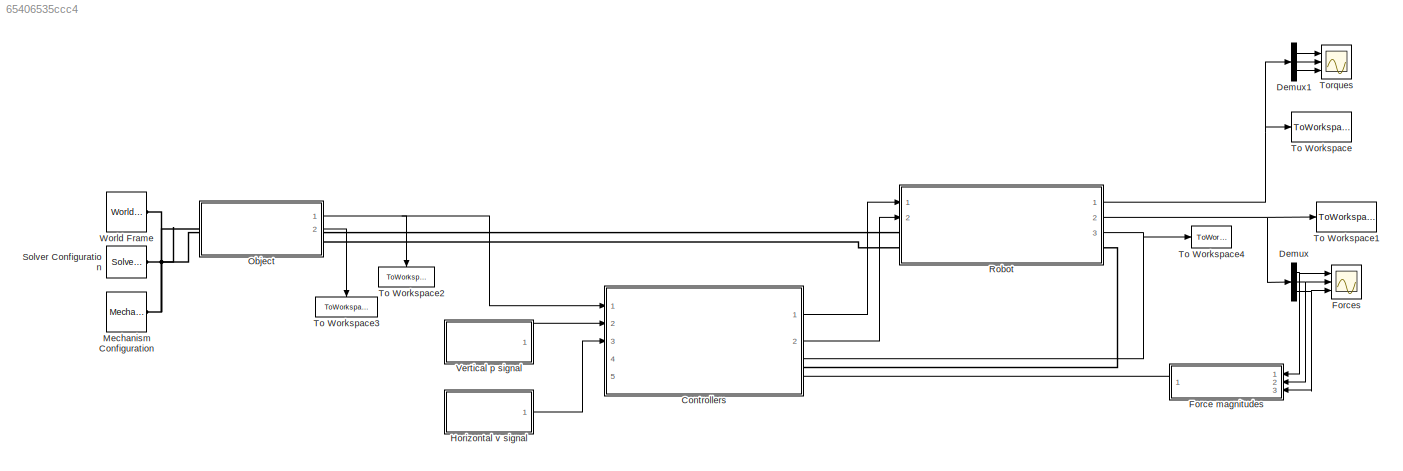
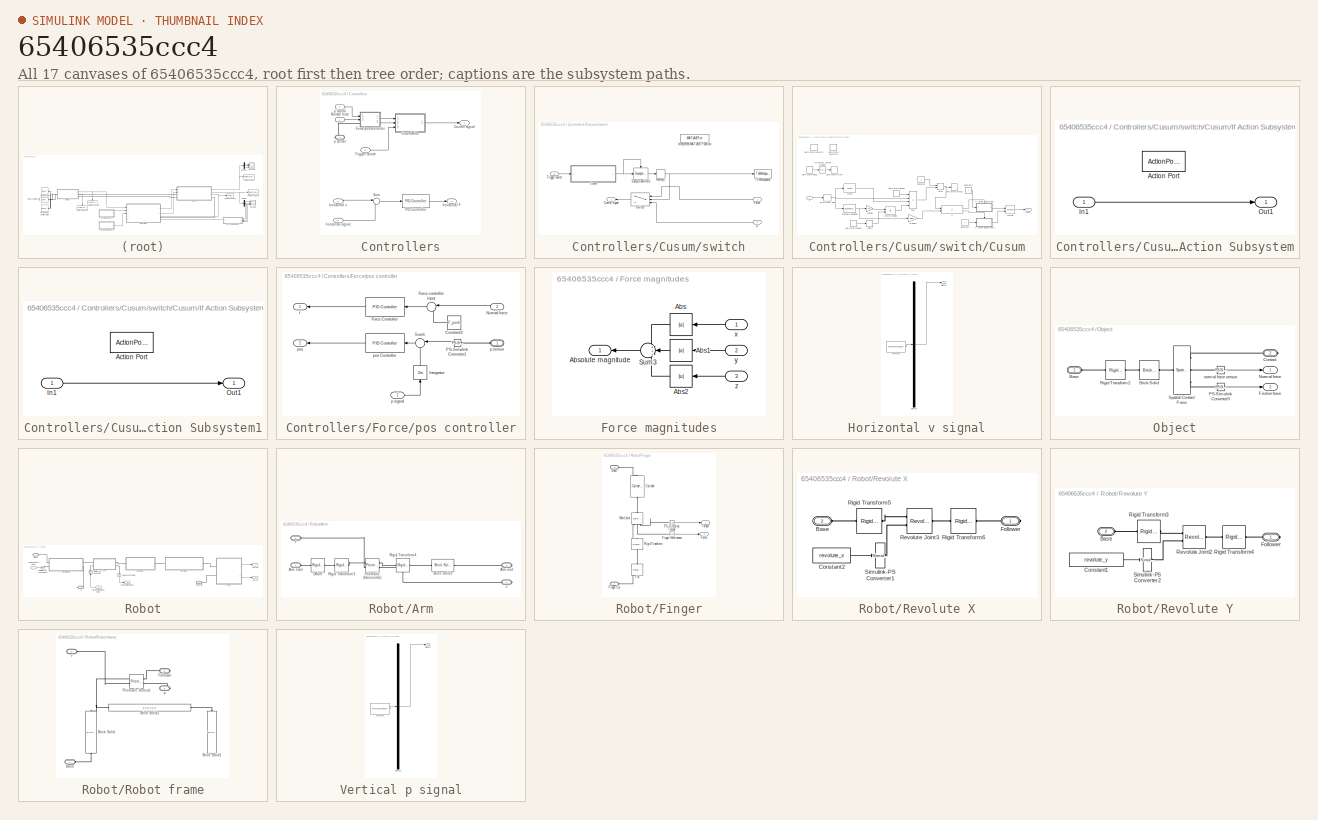
[diagram: thumbnail index - all 17 canvases of the model, root first then tree order]
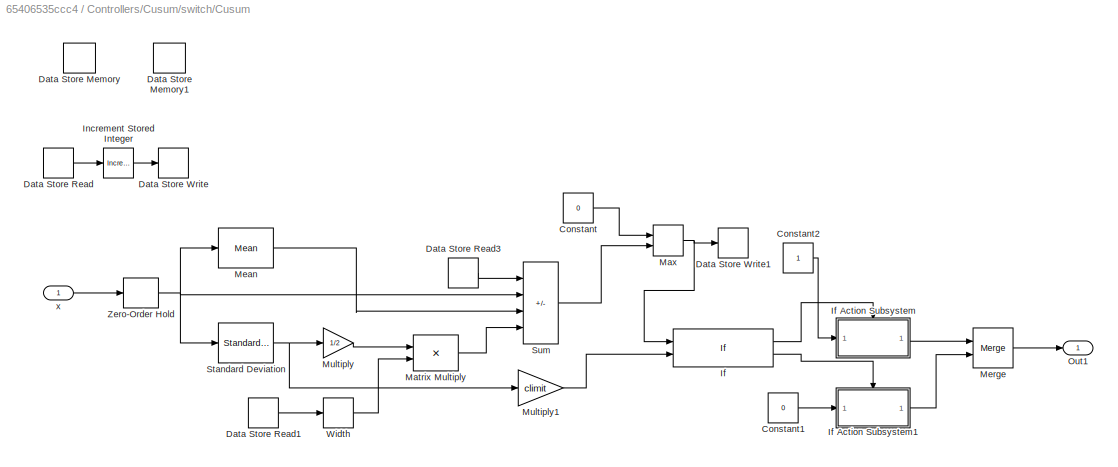
MODEL slx_65406535ccc4
KIND model
CONFIG AbsTol = 1e-3
CONFIG EnableMultiTasking = on
CONFIG FixedStep = 0.0005
CONFIG MaxStep = auto
CONFIG MinStep = auto
CONFIG RelTol = 1e-3
CONFIG SampleTimeConstraint = Unconstrained
CONFIG SolverName = VariableStepAuto
CONFIG StartTime = 0.0
CONFIG StopTime = 10
BLOCK [SubSystem] Controllers
  PortSchema = {"entries":[{"content":{"sides":[{"content":{"connectorIds":["In1","In2","In3"]},"type":"ConnectorPlacement.EquallySpacedRectSide","uuid":"fc0694cd-88fd-4e82-a16d-5926e29e811f"},{"content":{"connectorIds":["Out1","Out2","RConn1","In4","In5"],"side":"RIGHT"},"type":"ConnectorPlacement.EquallySpacedRectSide","uuid":"a4ce8955-1fca-49bf-bd79-0f76a5511258"},{"content":{"connectorIds":[],"side":"TOP"},"...<+424ch>
  Ports = [5, 2, 0, 0, 0, 0, 1]
  RequestExecContextInheritance = off
BLOCK [Outport] Controllers/Control signal
BLOCK [SubSystem] Controllers/Cusum//switch
  Ports = [3, 1]
  RequestExecContextInheritance = off
BLOCK [Outport] Controllers/Cusum//switch/Control signal
  NameLocation = top
BLOCK [SubSystem] Controllers/Cusum//switch/Cusum
  Ports = [1, 1]
  RequestExecContextInheritance = off
BLOCK [Constant] Controllers/Cusum//switch/Cusum/Constant
  Value = 0
BLOCK [Constant] Controllers/Cusum//switch/Cusum/Constant1
  Value = 0
BLOCK [Constant] Controllers/Cusum//switch/Cusum/Constant2
BLOCK [DataStoreMemory] Controllers/Cusum//switch/Cusum/Data Store Memory
  DataStoreName = i
  ReadBeforeWriteMsg = warning
  ShowAdditionalParam = off
  WriteAfterReadMsg = warning
  WriteAfterWriteMsg = warning
BLOCK [DataStoreMemory] Controllers/Cusum//switch/Cusum/Data Store Memory1
  DataStoreName = U
  ReadBeforeWriteMsg = warning
  ShowAdditionalParam = off
  WriteAfterReadMsg = warning
  WriteAfterWriteMsg = warning
BLOCK [DataStoreRead] Controllers/Cusum//switch/Cusum/Data Store Read
  DataStoreName = i
  Ports = [0, 1]
BLOCK [DataStoreRead] Controllers/Cusum//switch/Cusum/Data Store Read1
  DataStoreName = i
  Ports = [0, 1]
BLOCK [DataStoreRead] Controllers/Cusum//switch/Cusum/Data Store Read3
  DataStoreName = U
  Ports = [0, 1]
BLOCK [DataStoreWrite] Controllers/Cusum//switch/Cusum/Data Store Write
  DataStoreName = i
  Ports = [1]
BLOCK [DataStoreWrite] Controllers/Cusum//switch/Cusum/Data Store Write1
  DataStoreName = U
  Ports = [1]
BLOCK [If] Controllers/Cusum//switch/Cusum/If
  IfExpression = u1 > u2
  NumInputs = 2
  Ports = [2, 2]
BLOCK [SubSystem] Controllers/Cusum//switch/Cusum/If Action Subsystem
  Ports = [1, 1, 0, 0, 0, 0, 0, 1]
  RequestExecContextInheritance = off
  TreatAsAtomicUnit = on
BLOCK [ActionPort] Controllers/Cusum//switch/Cusum/If Action Subsystem/Action Port
  ActionPortLabel = if(u1 > u2)
BLOCK [Inport] Controllers/Cusum//switch/Cusum/If Action Subsystem/In1
BLOCK [Outport] Controllers/Cusum//switch/Cusum/If Action Subsystem/Out1
BLOCK [SubSystem] Controllers/Cusum//switch/Cusum/If Action Subsystem1
  Ports = [1, 1, 0, 0, 0, 0, 0, 1]
  RequestExecContextInheritance = off
  TreatAsAtomicUnit = on
BLOCK [ActionPort] Controllers/Cusum//switch/Cusum/If Action Subsystem1/Action Port
  ActionPortLabel = else
BLOCK [Inport] Controllers/Cusum//switch/Cusum/If Action Subsystem1/In1
BLOCK [Outport] Controllers/Cusum//switch/Cusum/If Action Subsystem1/Out1
BLOCK [Reference] Controllers/Cusum//switch/Cusum/Increment Stored Integer  REF=simulink/Additional Math
& Discrete/Additional Math:
Increment - Decrement/Increment
Stored Integer
  Ports = [1, 1]
  SourceBlock = simulink/Additional Math\n& Discrete/Additional Math:\nIncrement - Decrement/Increment\nStored Integer
  SourceProductBaseCode = SL
  SourceType = Stored Integer Value Increment
BLOCK [Product] Controllers/Cusum//switch/Cusum/Matrix Multiply
  Multiplication = Matrix(*)
  Ports = [2, 1]
BLOCK [MinMax] Controllers/Cusum//switch/Cusum/Max
  Function = max
  Inputs = 2
  Ports = [2, 1]
BLOCK [Reference] Controllers/Cusum//switch/Cusum/Mean  REF=dspstat3/Mean
  Ports = [1, 1]
  SourceBlock = dspstat3/Mean
  SourceProductBaseCode = DS
  SourceType = Mean
  UserDataPersistent = on
BLOCK [Merge] Controllers/Cusum//switch/Cusum/Merge
  Ports = [2, 1]
BLOCK [Gain] Controllers/Cusum//switch/Cusum/Multiply
  Gain = 1/2
BLOCK [Gain] Controllers/Cusum//switch/Cusum/Multiply1
  Gain = climit
BLOCK [Outport] Controllers/Cusum//switch/Cusum/Out1
BLOCK [Reference] Controllers/Cusum//switch/Cusum/Standard Deviation  REF=dspstat3/Standard
Deviation
  Ports = [1, 1]
  SourceBlock = dspstat3/Standard\nDeviation
  SourceProductBaseCode = DS
  SourceType = Standard Deviation
  UserDataPersistent = on
BLOCK [Sum] Controllers/Cusum//switch/Cusum/Sum
  IconShape = rectangular
  Inputs = ++--
  Ports = [4, 1]
BLOCK [Width] Controllers/Cusum//switch/Cusum/Width
BLOCK [ZeroOrderHold] Controllers/Cusum//switch/Cusum/Zero-Order Hold
  SampleTime = -1
BLOCK [Inport] Controllers/Cusum//switch/Cusum/x
BLOCK [Inport] Controllers/Cusum//switch/Force
  NameLocation = top
BLOCK [MATLABFcn] Controllers/Cusum//switch/Interpreted MATLAB Function
  Commented = on
  MATLABFcn = CUSUM_func
  NameLocation = top
  Ports = [1, 1]
BLOCK [Memory] Controllers/Cusum//switch/Memory
BLOCK [Reference] Controllers/Cusum//switch/Sample and Hold  REF=dspsigops/Sample
and Hold
  Ports = [1, 1, 0, 1]
  SourceBlock = dspsigops/Sample\nand Hold
  SourceProductBaseCode = DS
  SourceType = Sample and Hold
BLOCK [Switch] Controllers/Cusum//switch/Switch
  Criteria = u2 > Threshold
  InputSameDT = off
  NameLocation = top
  SaturateOnIntegerOverflow = off
  Threshold = 0.5
  ZeroCross = off
BLOCK [ToWorkspace] Controllers/Cusum//switch/To Workspace2
  FixptAsFi = on
  MaxDataPoints = inf
  Ports = [1]
  SampleTime = t_sample
  VariableName = cusum_trigger
BLOCK [Inport] Controllers/Cusum//switch/Trigger source
  NameLocation = top
  Port = 3
BLOCK [Inport] Controllers/Cusum//switch/p
  NameLocation = top
  Port = 2
BLOCK [SubSystem] Controllers/Force//pos controller
  Ports = [2, 2, 0, 0, 0, 1]
  RequestExecContextInheritance = off
BLOCK [Constant] Controllers/Force//pos controller/Constant3
  NameLocation = top
  Value = F_push
BLOCK [Reference] Controllers/Force//pos controller/Force Controller  REF=pid_lib/PID Controller
  NameLocation = top
  Ports = [1, 1]
  SourceBlock = pid_lib/PID Controller
  SourceProductBaseCode = SL
  SourceType = PID 1dof
BLOCK [Sum] Controllers/Force//pos controller/Force controller input
  Inputs = |-+
  NameLocation = top
  Ports = [2, 1]
BLOCK [Integrator] Controllers/Force//pos controller/Integrator
  NameLocation = right
  Ports = [1, 1]
BLOCK [Inport] Controllers/Force//pos controller/Normal force
  NameLocation = top
  Port = 2
BLOCK [Reference] Controllers/Force//pos controller/PS-Simulink Converter1  REF=nesl_utility/PS-Simulink
Converter
  NameLocation = top
  Ports = [0, 1, 0, 0, 0, 1]
  SourceBlock = nesl_utility/PS-Simulink\nConverter
  SourceProductBaseCode = SS
  SourceType = PS-Simulink\nConverter
BLOCK [Sum] Controllers/Force//pos controller/Sum1
  Inputs = |-+
  NameLocation = top
  Ports = [2, 1]
BLOCK [Outport] Controllers/Force//pos controller/f
BLOCK [PMIOPort] Controllers/Force//pos controller/p sensor
  NameLocation = top
  Side = Left
BLOCK [Inport] Controllers/Force//pos controller/p signal
BLOCK [Outport] Controllers/Force//pos controller/pos
  Port = 2
BLOCK [Reference] Controllers/Force//pos controller/pos Controller  REF=pid_lib/PID Controller
  NameLocation = top
  Ports = [1, 1]
  SourceBlock = pid_lib/PID Controller
  SourceProductBaseCode = SL
  SourceType = PID 1dof
BLOCK [Inport] Controllers/Normal force
BLOCK [Reference] Controllers/PID Controller  REF=pid_lib/PID Controller
  Ports = [1, 1]
  SourceBlock = pid_lib/PID Controller
  SourceProductBaseCode = SL
  SourceType = PID 1dof
BLOCK [Sum] Controllers/Sum
  Inputs = |-+
  Ports = [2, 1]
BLOCK [Inport] Controllers/Trigger source
  NameLocation = top
  Port = 5
BLOCK [Outport] Controllers/horizontal F
  Port = 2
BLOCK [Inport] Controllers/horizontal signal
  Port = 3
BLOCK [Inport] Controllers/horizontal v
  NameLocation = top
  Port = 4
BLOCK [PMIOPort] Controllers/p sensor
  Side = Right
BLOCK [Inport] Controllers/p signal
  Port = 2
BLOCK [Demux] Demux
  Outputs = 3
  Ports = [1, 3]
BLOCK [Demux] Demux1
  Commented = on
  Outputs = 3
  Ports = [1, 3]
BLOCK [SubSystem] Force magnitudes
  NameLocation = top
  Ports = [3, 1]
  RequestExecContextInheritance = off
BLOCK [Abs] Force magnitudes/Abs
  NameLocation = top
  SaturateOnIntegerOverflow = off
  ZeroCross = off
BLOCK [Abs] Force magnitudes/Abs1
  NameLocation = top
  SaturateOnIntegerOverflow = off
  ZeroCross = off
BLOCK [Abs] Force magnitudes/Abs2
  NameLocation = top
  SaturateOnIntegerOverflow = off
  ZeroCross = off
BLOCK [Outport] Force magnitudes/Absolute magnitude
BLOCK [Sum] Force magnitudes/Sum3
  Inputs = +++
  NameLocation = top
  Ports = [3, 1]
BLOCK [Inport] Force magnitudes/x
  NameLocation = top
BLOCK [Inport] Force magnitudes/y
  NameLocation = top
  Port = 2
BLOCK [Inport] Force magnitudes/z
  NameLocation = top
  Port = 3
BLOCK [Scope] Forces
  Commented = on
  Floating = off
  NumInputPorts = 3
  Ports = [3]
  ScopeSpecificationString = Simulink.scopes.TimeScopeBlockCfg('CurrentConfiguration', extmgr.ConfigurationSet(extmgr.Configuration('Core','General UI',true),extmgr.Configuration('Core','Source UI',true),extmgr.Configuration('Sources','WiredSimulink',true,'DataLoggingVariableName','ScopeData1'),extmgr.Configuration('Visuals','Time Domain',true,'SerializedDisplays',{struct('MinYLimReal','-6.95403','MaxYLimReal','19.48949','YLa...<+1460ch>
BLOCK [SubSystem] Horizontal v signal
  ClipboardFcn = sigbuilder_block('clipboard');
  CloseFcn = sigbuilder_block('close');
  ContinueFcn = sigbuilder_block('continue');
  CopyFcn = sigbuilder_block('copy');
  DeleteFcn = sigbuilder_block('delete');
  LoadFcn = sigbuilder_block('load');
  MaskHideContents = on
  ModelCloseFcn = sigbuilder_block('modelClose');
  NameChangeFcn = sigbuilder_block('namechange');
  OpenFcn = sigbuilder_block('open',[617 630 485 466 ]);
  PauseFcn = sigbuilder_block('pause');
  Ports = [0, 1]
  PreSaveFcn = sigbuilder_block('preSave');
  RequestExecContextInheritance = off
  StartFcn = sigbuilder_block('start');
  StopFcn = sigbuilder_block('stop');
  Tag = STV Subsys
BLOCK [Demux] Horizontal v signal/Demux
  DisplayOption = none
  Outputs = 1
  Ports = [1, 1]
  Tag = STV Demux
BLOCK [FromWorkspace] Horizontal v signal/FromWs
  Tag = STV FromWs
  VariableName = tuvar
BLOCK [Outport] Horizontal v signal/Signal 1
  Tag = STV Outport
BLOCK [Reference] Mechanism Configuration  REF=sm_lib/Utilities/Mechanism
Configuration
  Ports = [0, 0, 0, 0, 0, 0, 1]
  SourceBlock = sm_lib/Utilities/Mechanism\nConfiguration
  SourceProductBaseCode = MS
  SourceType = Mechanism\nConfiguration
BLOCK [SubSystem] Object
  PortSchema = {"entries":[{"content":{"sides":[{"content":{"connectorIds":["LConn1"]},"type":"ConnectorPlacement.EquallySpacedRectSide","uuid":"2f6866e3-5725-49c3-8e42-e751d0200e5c"},{"content":{"connectorIds":["RConn1","Out1","Out2"],"side":"RIGHT"},"type":"ConnectorPlacement.EquallySpacedRectSide","uuid":"d25fec63-6094-4266-9de7-59e4bd06e905"},{"content":{"connectorIds":[],"side":"TOP"},"type":"ConnectorPlace...<+403ch>
  Ports = [0, 2, 0, 0, 0, 1, 1]
  RequestExecContextInheritance = off
BLOCK [PMIOPort] Object/Base
  Side = Left
BLOCK [Reference] Object/Brick Solid  REF=sm_lib/Body Elements/Brick Solid
  Ports = [0, 0, 0, 0, 0, 1, 1]
  SourceBlock = sm_lib/Body Elements/Brick Solid
  SourceProductBaseCode = MS
  SourceType = Brick Solid
BLOCK [PMIOPort] Object/Contact
  Port = 2
  Side = Right
BLOCK [Outport] Object/Friction force
  Port = 2
BLOCK [Outport] Object/Normal force
BLOCK [Reference] Object/PS-Simulink Converter3  REF=nesl_utility/PS-Simulink
Converter
  Ports = [0, 1, 0, 0, 0, 1]
  SourceBlock = nesl_utility/PS-Simulink\nConverter
  SourceProductBaseCode = SS
  SourceType = PS-Simulink\nConverter
BLOCK [Reference] Object/Rigid Transform2  REF=sm_lib/Frames and
Transforms/Rigid
Transform
  Ports = [0, 0, 0, 0, 0, 1, 1]
  SourceBlock = sm_lib/Frames and\nTransforms/Rigid\nTransform
  SourceProductBaseCode = MS
  SourceType = Rigid\nTransform
BLOCK [Reference] Object/Spatial Contact Force  REF=sm_lib/Forces and
Torques/Spatial
Contact Force
  Ports = [0, 0, 0, 0, 0, 1, 3]
  SourceBlock = sm_lib/Forces and\nTorques/Spatial\nContact Force
  SourceProductBaseCode = MS
  SourceType = Spatial\nContact Force
BLOCK [Reference] Object/normal force sensor  REF=nesl_utility/PS-Simulink
Converter
  Ports = [0, 1, 0, 0, 0, 1]
  SourceBlock = nesl_utility/PS-Simulink\nConverter
  SourceProductBaseCode = SS
  SourceType = PS-Simulink\nConverter
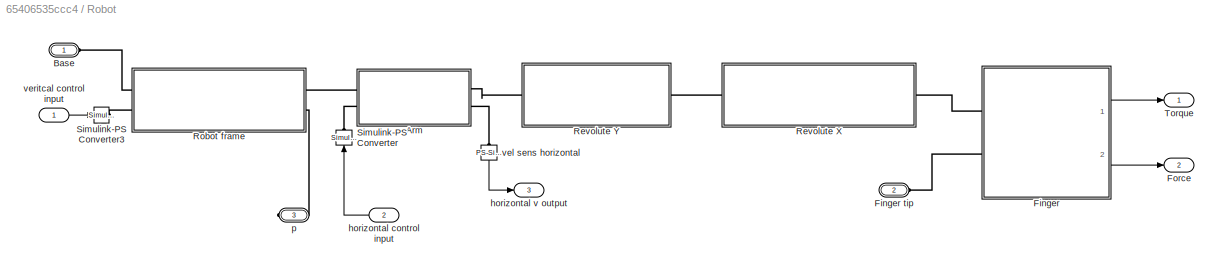
BLOCK [SubSystem] Robot
  PortSchema = {"entries":[{"content":{"sides":[{"content":{"connectorIds":["LConn1","LConn2","In1","In2"]},"type":"ConnectorPlacement.EquallySpacedRectSide","uuid":"f9b02dfe-a73a-4f6d-afea-36af604912b9"},{"content":{"connectorIds":["Out1","Out2","Out3","RConn1"],"side":"RIGHT"},"type":"ConnectorPlacement.EquallySpacedRectSide","uuid":"0902cfd3-fe7e-4d28-8a91-48aa32006fca"},{"content":{"connectorIds":[],"side":"...<+431ch>
  Ports = [2, 3, 0, 0, 0, 2, 1]
  RequestExecContextInheritance = off
BLOCK [SubSystem] Robot/Arm
  Ports = [0, 0, 0, 0, 0, 2, 2]
  RequestExecContextInheritance = off
BLOCK [PMIOPort] Robot/Arm/Arm end
  Port = 3
  Side = Right
BLOCK [PMIOPort] Robot/Arm/Arm start
  Side = Left
BLOCK [Reference] Robot/Arm/Brick Solid3  REF=sm_lib/Body Elements/Brick Solid
  NameLocation = top
  Ports = [0, 0, 0, 0, 0, 1, 1]
  SourceBlock = sm_lib/Body Elements/Brick Solid
  SourceProductBaseCode = MS
  SourceType = Brick Solid
BLOCK [Reference] Robot/Arm/Offset  REF=sm_lib/Frames and
Transforms/Rigid
Transform
  Ports = [0, 0, 0, 0, 0, 1, 1]
  SourceBlock = sm_lib/Frames and\nTransforms/Rigid\nTransform
  SourceProductBaseCode = MS
  SourceType = Rigid\nTransform
BLOCK [Reference] Robot/Arm/Prismatic (Horizontal)  REF=sm_lib/Joints/Prismatic
Joint
  NameLocation = top
  Ports = [0, 0, 0, 0, 0, 2, 2]
  SourceBlock = sm_lib/Joints/Prismatic\nJoint
  SourceProductBaseCode = MS
  SourceType = Prismatic\nJoint
BLOCK [Reference] Robot/Arm/Rigid Transform3  REF=sm_lib/Frames and
Transforms/Rigid
Transform
  Ports = [0, 0, 0, 0, 0, 1, 1]
  SourceBlock = sm_lib/Frames and\nTransforms/Rigid\nTransform
  SourceProductBaseCode = MS
  SourceType = Rigid\nTransform
BLOCK [Reference] Robot/Arm/Rigid Transform4  REF=sm_lib/Frames and
Transforms/Rigid
Transform
  Ports = [0, 0, 0, 0, 0, 1, 1]
  SourceBlock = sm_lib/Frames and\nTransforms/Rigid\nTransform
  SourceProductBaseCode = MS
  SourceType = Rigid\nTransform
BLOCK [PMIOPort] Robot/Arm/f
  Port = 2
  Side = Left
BLOCK [PMIOPort] Robot/Arm/v
  Port = 4
  Side = Right
BLOCK [PMIOPort] Robot/Base
  Side = Left
BLOCK [SubSystem] Robot/Finger
  Ports = [0, 2, 0, 0, 0, 2]
  RequestExecContextInheritance = off
BLOCK [PMIOPort] Robot/Finger tip
  Port = 2
  Side = Left
BLOCK [PMIOPort] Robot/Finger/Base
  Side = Left
BLOCK [Reference] Robot/Finger/Cylinder  REF=sm_lib/Body Elements/Cylindrical Solid
  NameLocation = right
  Ports = [0, 0, 0, 0, 0, 1, 1]
  SourceBlock = sm_lib/Body Elements/Cylindrical Solid
  SourceProductBaseCode = MS
  SourceType = Cylindrical Solid
BLOCK [Reference] Robot/Finger/Finger force sensor  REF=nesl_utility/PS-Simulink
Converter
  Ports = [0, 1, 0, 0, 0, 1]
  SourceBlock = nesl_utility/PS-Simulink\nConverter
  SourceProductBaseCode = SS
  SourceType = PS-Simulink\nConverter
BLOCK [PMIOPort] Robot/Finger/Finger tip
  Port = 2
  Side = Left
BLOCK [Outport] Robot/Finger/Force
  Port = 2
BLOCK [Reference] Robot/Finger/PS-Simulink Torque  REF=nesl_utility/PS-Simulink
Converter
  Ports = [0, 1, 0, 0, 0, 1]
  SourceBlock = nesl_utility/PS-Simulink\nConverter
  SourceProductBaseCode = SS
  SourceType = PS-Simulink\nConverter
BLOCK [Reference] Robot/Finger/Rigid Transform  REF=sm_lib/Frames and
Transforms/Rigid
Transform
  NameLocation = left
  Ports = [0, 0, 0, 0, 0, 1, 1]
  SourceBlock = sm_lib/Frames and\nTransforms/Rigid\nTransform
  SourceProductBaseCode = MS
  SourceType = Rigid\nTransform
BLOCK [Reference] Robot/Finger/Tip  REF=sm_lib/Body Elements/Revolved Solid
  NameLocation = right
  Ports = [0, 0, 0, 0, 0, 1, 1]
  SourceBlock = sm_lib/Body Elements/Revolved Solid
  SourceProductBaseCode = MS
  SourceType = Revolved Solid
BLOCK [Outport] Robot/Finger/Torque
BLOCK [Reference] Robot/Finger/Weld Joint  REF=sm_lib/Joints/Weld Joint
  NameLocation = left
  Ports = [0, 0, 0, 0, 0, 1, 3]
  SourceBlock = sm_lib/Joints/Weld Joint
  SourceProductBaseCode = MS
  SourceType = Weld Joint
BLOCK [Outport] Robot/Force
  Port = 2
BLOCK [SubSystem] Robot/Revolute X
  Ports = [0, 0, 0, 0, 0, 1, 1]
  RequestExecContextInheritance = off
BLOCK [PMIOPort] Robot/Revolute X/Base
  Port = 2
  Side = Left
BLOCK [Constant] Robot/Revolute X/Constant2
  Value = revolute_x
BLOCK [PMIOPort] Robot/Revolute X/Follower
  Side = Right
BLOCK [Reference] Robot/Revolute X/Revolute Joint3  REF=sm_lib/Joints/Revolute Joint
  Ports = [0, 0, 0, 0, 0, 2, 1]
  SourceBlock = sm_lib/Joints/Revolute Joint
  SourceProductBaseCode = MS
  SourceType = Revolute Joint
BLOCK [Reference] Robot/Revolute X/Rigid Transform5  REF=sm_lib/Frames and
Transforms/Rigid
Transform
  Ports = [0, 0, 0, 0, 0, 1, 1]
  SourceBlock = sm_lib/Frames and\nTransforms/Rigid\nTransform
  SourceProductBaseCode = MS
  SourceType = Rigid\nTransform
BLOCK [Reference] Robot/Revolute X/Rigid Transform6  REF=sm_lib/Frames and
Transforms/Rigid
Transform
  Ports = [0, 0, 0, 0, 0, 1, 1]
  SourceBlock = sm_lib/Frames and\nTransforms/Rigid\nTransform
  SourceProductBaseCode = MS
  SourceType = Rigid\nTransform
BLOCK [Reference] Robot/Revolute X/Simulink-PS Converter1  REF=nesl_utility/Simulink-PS
Converter
  Ports = [1, 0, 0, 0, 0, 0, 1]
  SourceBlock = nesl_utility/Simulink-PS\nConverter
  SourceProductBaseCode = SS
  SourceType = Simulink-PS\nConverter
BLOCK [SubSystem] Robot/Revolute Y
  Ports = [0, 0, 0, 0, 0, 1, 1]
  RequestExecContextInheritance = off
BLOCK [PMIOPort] Robot/Revolute Y/Base
  Port = 2
  Side = Left
BLOCK [Constant] Robot/Revolute Y/Constant1
  Value = revolute_y
BLOCK [PMIOPort] Robot/Revolute Y/Follower
  Side = Right
BLOCK [Reference] Robot/Revolute Y/Revolute Joint2  REF=sm_lib/Joints/Revolute Joint
  Ports = [0, 0, 0, 0, 0, 2, 1]
  SourceBlock = sm_lib/Joints/Revolute Joint
  SourceProductBaseCode = MS
  SourceType = Revolute Joint
BLOCK [Reference] Robot/Revolute Y/Rigid Transform3  REF=sm_lib/Frames and
Transforms/Rigid
Transform
  Ports = [0, 0, 0, 0, 0, 1, 1]
  SourceBlock = sm_lib/Frames and\nTransforms/Rigid\nTransform
  SourceProductBaseCode = MS
  SourceType = Rigid\nTransform
BLOCK [Reference] Robot/Revolute Y/Rigid Transform4  REF=sm_lib/Frames and
Transforms/Rigid
Transform
  Ports = [0, 0, 0, 0, 0, 1, 1]
  SourceBlock = sm_lib/Frames and\nTransforms/Rigid\nTransform
  SourceProductBaseCode = MS
  SourceType = Rigid\nTransform
BLOCK [Reference] Robot/Revolute Y/Simulink-PS Converter2  REF=nesl_utility/Simulink-PS
Converter
  Ports = [1, 0, 0, 0, 0, 0, 1]
  SourceBlock = nesl_utility/Simulink-PS\nConverter
  SourceProductBaseCode = SS
  SourceType = Simulink-PS\nConverter
BLOCK [SubSystem] Robot/Robot frame
  Ports = [0, 0, 0, 0, 0, 2, 2]
  RequestExecContextInheritance = off
BLOCK [PMIOPort] Robot/Robot frame/Base
  Side = Left
BLOCK [Reference] Robot/Robot frame/Brick Solid  REF=sm_lib/Body Elements/Brick Solid
  NameLocation = right
  Ports = [0, 0, 0, 0, 0, 1, 1]
  SourceBlock = sm_lib/Body Elements/Brick Solid
  SourceProductBaseCode = MS
  SourceType = Brick Solid
BLOCK [Reference] Robot/Robot frame/Brick Solid1  REF=sm_lib/Body Elements/Brick Solid
  NameLocation = left
  Ports = [0, 0, 0, 0, 0, 1]
  SourceBlock = sm_lib/Body Elements/Brick Solid
  SourceProductBaseCode = MS
  SourceType = Brick Solid
BLOCK [Reference] Robot/Robot frame/Brick Solid2  REF=sm_lib/Body Elements/Brick Solid
  Ports = [0, 0, 0, 0, 0, 1, 1]
  SourceBlock = sm_lib/Body Elements/Brick Solid
  SourceProductBaseCode = MS
  SourceType = Brick Solid
BLOCK [PMIOPort] Robot/Robot frame/Follower
  Port = 2
  Side = Right
BLOCK [Reference] Robot/Robot frame/Prismatic Vertical  REF=sm_lib/Joints/Prismatic
Joint
  NameLocation = top
  Ports = [0, 0, 0, 0, 0, 2, 2]
  SourceBlock = sm_lib/Joints/Prismatic\nJoint
  SourceProductBaseCode = MS
  SourceType = Prismatic\nJoint
BLOCK [PMIOPort] Robot/Robot frame/f
  Port = 3
  Side = Left
BLOCK [PMIOPort] Robot/Robot frame/p
  Port = 4
  Side = Right
BLOCK [Reference] Robot/Simulink-PS Converter  REF=nesl_utility/Simulink-PS
Converter
  NameLocation = right
  Ports = [1, 0, 0, 0, 0, 0, 1]
  SourceBlock = nesl_utility/Simulink-PS\nConverter
  SourceProductBaseCode = SS
  SourceType = Simulink-PS\nConverter
BLOCK [Reference] Robot/Simulink-PS Converter3  REF=nesl_utility/Simulink-PS
Converter
  Ports = [1, 0, 0, 0, 0, 0, 1]
  SourceBlock = nesl_utility/Simulink-PS\nConverter
  SourceProductBaseCode = SS
  SourceType = Simulink-PS\nConverter
BLOCK [Outport] Robot/Torque
BLOCK [Inport] Robot/horizontal control input
  Port = 2
BLOCK [Outport] Robot/horizontal v output
  Port = 3
BLOCK [PMIOPort] Robot/p
  Port = 3
  Side = Right
BLOCK [Reference] Robot/vel sens horizontal  REF=nesl_utility/PS-Simulink
Converter
  NameLocation = left
  Ports = [0, 1, 0, 0, 0, 1]
  SourceBlock = nesl_utility/PS-Simulink\nConverter
  SourceProductBaseCode = SS
  SourceType = PS-Simulink\nConverter
BLOCK [Inport] Robot/veritcal control input
  NameLocation = top
BLOCK [Reference] Solver Configuration  REF=nesl_utility/Solver
Configuration
  Ports = [0, 0, 0, 0, 0, 0, 1]
  SourceBlock = nesl_utility/Solver\nConfiguration
  SourceProductName = Utilities
  SourceType = Solver\nConfiguration
BLOCK [ToWorkspace] To Workspace
  FixptAsFi = on
  MaxDataPoints = inf
  Ports = [1]
  SampleTime = t_sample
  VariableName = Torque
BLOCK [ToWorkspace] To Workspace1
  FixptAsFi = on
  MaxDataPoints = inf
  Ports = [1]
  SampleTime = t_sample
  VariableName = Force
BLOCK [ToWorkspace] To Workspace2
  FixptAsFi = on
  MaxDataPoints = inf
  NameLocation = left
  Ports = [1]
  SampleTime = t_sample
  VariableName = F_normal
BLOCK [ToWorkspace] To Workspace3
  FixptAsFi = on
  MaxDataPoints = inf
  NameLocation = left
  Ports = [1]
  SampleTime = t_sample
  VariableName = F_friction
BLOCK [ToWorkspace] To Workspace4
  FixptAsFi = on
  MaxDataPoints = inf
  Ports = [1]
  SampleTime = t_sample
  SaveFormat = Timeseries
  VariableName = vel
BLOCK [Scope] Torques
  Commented = on
  Floating = off
  NumInputPorts = 3
  Ports = [3]
  ScopeSpecificationString = Simulink.scopes.TimeScopeBlockCfg('CurrentConfiguration', extmgr.ConfigurationSet(extmgr.Configuration('Core','General UI',true),extmgr.Configuration('Core','Source UI',true),extmgr.Configuration('Sources','WiredSimulink',true),extmgr.Configuration('Visuals','Time Domain',true,'SerializedDisplays',{struct('MinYLimReal','-1.40743','MaxYLimReal','1.45957','YLabelReal','','MinYLimMag','0.00000','MaxY...<+1350ch>
BLOCK [SubSystem] Vertical p signal
  ClipboardFcn = sigbuilder_block('clipboard');
  CloseFcn = sigbuilder_block('close');
  ContinueFcn = sigbuilder_block('continue');
  CopyFcn = sigbuilder_block('copy');
  DeleteFcn = sigbuilder_block('delete');
  LoadFcn = sigbuilder_block('load');
  MaskHideContents = on
  ModelCloseFcn = sigbuilder_block('modelClose');
  NameChangeFcn = sigbuilder_block('namechange');
  OpenFcn = sigbuilder_block('open',[249 255 1034 710 ]);
  PauseFcn = sigbuilder_block('pause');
  Ports = [0, 1]
  PreSaveFcn = sigbuilder_block('preSave');
  RequestExecContextInheritance = off
  StartFcn = sigbuilder_block('start');
  StopFcn = sigbuilder_block('stop');
  Tag = STV Subsys
BLOCK [Demux] Vertical p signal/Demux
  DisplayOption = none
  Outputs = 1
  Ports = [1, 1]
  Tag = STV Demux
BLOCK [FromWorkspace] Vertical p signal/FromWs
  Tag = STV FromWs
  VariableName = tuvar
BLOCK [Outport] Vertical p signal/Signal 1
  Tag = STV Outport
BLOCK [Reference] World Frame  REF=sm_lib/Frames and
Transforms/World Frame
  Ports = [0, 0, 0, 0, 0, 0, 1]
  SourceBlock = sm_lib/Frames and\nTransforms/World Frame
  SourceProductName = Multibody
  SourceType = World Frame
LINE Controllers/Cusum//switch/Cusum/Constant1:1 -> Controllers/Cusum//switch/Cusum/If Action Subsystem1:1
LINE Controllers/Cusum//switch/Cusum/Constant2:1 -> Controllers/Cusum//switch/Cusum/If Action Subsystem:1
LINE Controllers/Cusum//switch/Cusum/Constant:1 -> Controllers/Cusum//switch/Cusum/Max:1
LINE Controllers/Cusum//switch/Cusum/Data Store Read1:1 -> Controllers/Cusum//switch/Cusum/Width:1
LINE Controllers/Cusum//switch/Cusum/Data Store Read3:1 -> Controllers/Cusum//switch/Cusum/Sum:1
LINE Controllers/Cusum//switch/Cusum/Data Store Read:1 -> Controllers/Cusum//switch/Cusum/Increment Stored Integer:1
LINE Controllers/Cusum//switch/Cusum/If Action Subsystem/In1:1 -> Controllers/Cusum//switch/Cusum/If Action Subsystem/Out1:1
LINE Controllers/Cusum//switch/Cusum/If Action Subsystem1/In1:1 -> Controllers/Cusum//switch/Cusum/If Action Subsystem1/Out1:1
LINE Controllers/Cusum//switch/Cusum/If Action Subsystem1:1 -> Controllers/Cusum//switch/Cusum/Merge:2
LINE Controllers/Cusum//switch/Cusum/If Action Subsystem:1 -> Controllers/Cusum//switch/Cusum/Merge:1
LINE Controllers/Cusum//switch/Cusum/If:1 -> Controllers/Cusum//switch/Cusum/If Action Subsystem:ifaction
LINE Controllers/Cusum//switch/Cusum/If:2 -> Controllers/Cusum//switch/Cusum/If Action Subsystem1:ifaction
LINE Controllers/Cusum//switch/Cusum/Increment Stored Integer:1 -> Controllers/Cusum//switch/Cusum/Data Store Write:1
LINE Controllers/Cusum//switch/Cusum/Matrix Multiply:1 -> Controllers/Cusum//switch/Cusum/Sum:4
NET Controllers/Cusum//switch/Cusum/Max:1 -> Controllers/Cusum//switch/Cusum/Data Store Write1:1, Controllers/Cusum//switch/Cusum/If:1
LINE Controllers/Cusum//switch/Cusum/Mean:1 -> Controllers/Cusum//switch/Cusum/Sum:3
LINE Controllers/Cusum//switch/Cusum/Merge:1 -> Controllers/Cusum//switch/Cusum/Out1:1
LINE Controllers/Cusum//switch/Cusum/Multiply1:1 -> Controllers/Cusum//switch/Cusum/If:2
LINE Controllers/Cusum//switch/Cusum/Multiply:1 -> Controllers/Cusum//switch/Cusum/Matrix Multiply:1
NET Controllers/Cusum//switch/Cusum/Standard Deviation:1 -> Controllers/Cusum//switch/Cusum/Multiply1:1, Controllers/Cusum//switch/Cusum/Multiply:1
LINE Controllers/Cusum//switch/Cusum/Sum:1 -> Controllers/Cusum//switch/Cusum/Max:2
LINE Controllers/Cusum//switch/Cusum/Width:1 -> Controllers/Cusum//switch/Cusum/Matrix Multiply:2
NET Controllers/Cusum//switch/Cusum/Zero-Order Hold:1 -> Controllers/Cusum//switch/Cusum/Mean:1, Controllers/Cusum//switch/Cusum/Standard Deviation:1, Controllers/Cusum//switch/Cusum/Sum:2
LINE Controllers/Cusum//switch/Cusum/x:1 -> Controllers/Cusum//switch/Cusum/Zero-Order Hold:1
NET Controllers/Cusum//switch/Cusum:1 -> Controllers/Cusum//switch/Sample and Hold:1, Controllers/Cusum//switch/Sample and Hold:trigger
LINE Controllers/Cusum//switch/Force:1 -> Controllers/Cusum//switch/Switch:1
NET Controllers/Cusum//switch/Memory:1 -> Controllers/Cusum//switch/Switch:2, Controllers/Cusum//switch/To Workspace2:1
LINE Controllers/Cusum//switch/Sample and Hold:1 -> Controllers/Cusum//switch/Memory:1
LINE Controllers/Cusum//switch/Switch:1 -> Controllers/Cusum//switch/Control signal:1
LINE Controllers/Cusum//switch/Trigger source:1 -> Controllers/Cusum//switch/Cusum:1
LINE Controllers/Cusum//switch/p:1 -> Controllers/Cusum//switch/Switch:3
LINE Controllers/Cusum//switch:1 -> Controllers/Control signal:1
LINE Controllers/Force//pos controller/Constant3:1 -> Controllers/Force//pos controller/Force controller input:2
LINE Controllers/Force//pos controller/Force Controller:1 -> Controllers/Force//pos controller/f:1
LINE Controllers/Force//pos controller/Force controller input:1 -> Controllers/Force//pos controller/Force Controller:1
LINE Controllers/Force//pos controller/Integrator:1 -> Controllers/Force//pos controller/Sum1:2
LINE Controllers/Force//pos controller/Normal force:1 -> Controllers/Force//pos controller/Force controller input:1
LINE Controllers/Force//pos controller/PS-Simulink Converter1:1 -> Controllers/Force//pos controller/Sum1:1
LINE Controllers/Force//pos controller/Sum1:1 -> Controllers/Force//pos controller/pos Controller:1
LINE Controllers/Force//pos controller/p signal:1 -> Controllers/Force//pos controller/Integrator:1
LINE Controllers/Force//pos controller/pos Controller:1 -> Controllers/Force//pos controller/pos:1
LINE Controllers/Force//pos controller:1 -> Controllers/Cusum//switch:1
LINE Controllers/Force//pos controller:2 -> Controllers/Cusum//switch:2
LINE Controllers/Normal force:1 -> Controllers/Force//pos controller:2
LINE Controllers/PID Controller:1 -> Controllers/horizontal F:1
LINE Controllers/Sum:1 -> Controllers/PID Controller:1
LINE Controllers/Trigger source:1 -> Controllers/Cusum//switch:3
LINE Controllers/horizontal signal:1 -> Controllers/Sum:2
LINE Controllers/horizontal v:1 -> Controllers/Sum:1
LINE Controllers/p signal:1 -> Controllers/Force//pos controller:1
LINE Controllers:1 -> Robot:1
LINE Controllers:2 -> Robot:2
LINE Demux1:1 -> Torques:1
LINE Demux1:2 -> Torques:2
LINE Demux1:3 -> Torques:3
NET Demux:1 -> Force magnitudes:1, Forces:1
NET Demux:2 -> Force magnitudes:2, Forces:2
NET Demux:3 -> Force magnitudes:3, Forces:3
LINE Force magnitudes/Abs1:1 -> Force magnitudes/Sum3:2
LINE Force magnitudes/Abs2:1 -> Force magnitudes/Sum3:3
LINE Force magnitudes/Abs:1 -> Force magnitudes/Sum3:1
LINE Force magnitudes/Sum3:1 -> Force magnitudes/Absolute magnitude:1
LINE Force magnitudes/x:1 -> Force magnitudes/Abs:1
LINE Force magnitudes/y:1 -> Force magnitudes/Abs1:1
LINE Force magnitudes/z:1 -> Force magnitudes/Abs2:1
LINE Force magnitudes:1 -> Controllers:5
LINE Horizontal v signal:1 -> Controllers:3
LINE Object/PS-Simulink Converter3:1 -> Object/Friction force:1
LINE Object/normal force sensor:1 -> Object/Normal force:1
NET Object:1 -> Controllers:1, To Workspace2:1
LINE Object:2 -> To Workspace3:1
LINE Robot/Finger/Finger force sensor:1 -> Robot/Finger/Force:1
LINE Robot/Finger/PS-Simulink Torque:1 -> Robot/Finger/Torque:1
LINE Robot/Finger:1 -> Robot/Torque:1
LINE Robot/Finger:2 -> Robot/Force:1
LINE Robot/Revolute X/Constant2:1 -> Robot/Revolute X/Simulink-PS Converter1:1
LINE Robot/Revolute Y/Constant1:1 -> Robot/Revolute Y/Simulink-PS Converter2:1
LINE Robot/horizontal control input:1 -> Robot/Simulink-PS Converter:1
LINE Robot/vel sens horizontal:1 -> Robot/horizontal v output:1
LINE Robot/veritcal control input:1 -> Robot/Simulink-PS Converter3:1
NET Robot:1 -> Demux1:1, To Workspace:1
NET Robot:2 -> Demux:1, To Workspace1:1
NET Robot:3 -> Controllers:4, To Workspace4:1
LINE Vertical p signal:1 -> Controllers:2
PLINE Controllers/Force//pos controller/PS-Simulink Converter1:LConn1 -- Controllers/Force//pos controller/p sensor:RConn1
PLINE Controllers/Force//pos controller:LConn1 -- Controllers/p sensor:RConn1
PLINE Controllers:RConn1 -- Robot:RConn1
PNET net1: Mechanism Configuration:RConn1 -- Object:LConn1 -- Robot:LConn1 -- Solver Configuration:RConn1 -- World Frame:RConn1
PLINE Object/Base:RConn1 -- Object/Rigid Transform2:LConn1
PLINE Object/Brick Solid:LConn1 -- Object/Rigid Transform2:RConn1
PLINE Object/Brick Solid:RConn1 -- Object/Spatial Contact Force:LConn1
PLINE Object/Contact:RConn1 -- Object/Spatial Contact Force:RConn1
PLINE Object/PS-Simulink Converter3:LConn1 -- Object/Spatial Contact Force:RConn3
PLINE Object/Spatial Contact Force:RConn2 -- Object/normal force sensor:LConn1
PLINE Object:RConn1 -- Robot:LConn2
PLINE Robot/Arm/Arm end:RConn1 -- Robot/Arm/Brick Solid3:LConn1
PLINE Robot/Arm/Arm start:RConn1 -- Robot/Arm/Offset:LConn1
PLINE Robot/Arm/Brick Solid3:RConn1 -- Robot/Arm/Rigid Transform4:RConn1
PLINE Robot/Arm/Offset:RConn1 -- Robot/Arm/Rigid Transform3:LConn1
PLINE Robot/Arm/Prismatic (Horizontal):LConn1 -- Robot/Arm/Rigid Transform3:RConn1
PLINE Robot/Arm/Prismatic (Horizontal):LConn2 -- Robot/Arm/f:RConn1
PLINE Robot/Arm/Prismatic (Horizontal):RConn1 -- Robot/Arm/Rigid Transform4:LConn1
PLINE Robot/Arm/Prismatic (Horizontal):RConn2 -- Robot/Arm/v:RConn1
PLINE Robot/Arm:LConn1 -- Robot/Robot frame:RConn1
PLINE Robot/Arm:LConn2 -- Robot/Simulink-PS Converter:RConn1
PLINE Robot/Arm:RConn1 -- Robot/Revolute Y:LConn1
PLINE Robot/Arm:RConn2 -- Robot/vel sens horizontal:LConn1
PLINE Robot/Base:RConn1 -- Robot/Robot frame:LConn1
PLINE Robot/Finger tip:RConn1 -- Robot/Finger:LConn2
PLINE Robot/Finger/Base:RConn1 -- Robot/Finger/Cylinder:LConn1
PLINE Robot/Finger/Cylinder:RConn1 -- Robot/Finger/Weld Joint:LConn1
PLINE Robot/Finger/Finger force sensor:LConn1 -- Robot/Finger/Weld Joint:RConn2
PLINE Robot/Finger/Finger tip:RConn1 -- Robot/Finger/Tip:LConn1
PLINE Robot/Finger/PS-Simulink Torque:LConn1 -- Robot/Finger/Weld Joint:RConn3
PLINE Robot/Finger/Rigid Transform:LConn1 -- Robot/Finger/Weld Joint:RConn1
PLINE Robot/Finger/Rigid Transform:RConn1 -- Robot/Finger/Tip:RConn1
PLINE Robot/Finger:LConn1 -- Robot/Revolute X:RConn1
PLINE Robot/Revolute X/Base:RConn1 -- Robot/Revolute X/Rigid Transform5:LConn1
PLINE Robot/Revolute X/Follower:RConn1 -- Robot/Revolute X/Rigid Transform6:RConn1
PLINE Robot/Revolute X/Revolute Joint3:LConn1 -- Robot/Revolute X/Rigid Transform5:RConn1
PLINE Robot/Revolute X/Revolute Joint3:LConn2 -- Robot/Revolute X/Simulink-PS Converter1:RConn1
PLINE Robot/Revolute X/Revolute Joint3:RConn1 -- Robot/Revolute X/Rigid Transform6:LConn1
PLINE Robot/Revolute X:LConn1 -- Robot/Revolute Y:RConn1
PLINE Robot/Revolute Y/Base:RConn1 -- Robot/Revolute Y/Rigid Transform3:LConn1
PLINE Robot/Revolute Y/Follower:RConn1 -- Robot/Revolute Y/Rigid Transform4:RConn1
PLINE Robot/Revolute Y/Revolute Joint2:LConn1 -- Robot/Revolute Y/Rigid Transform3:RConn1
PLINE Robot/Revolute Y/Revolute Joint2:LConn2 -- Robot/Revolute Y/Simulink-PS Converter2:RConn1
PLINE Robot/Revolute Y/Revolute Joint2:RConn1 -- Robot/Revolute Y/Rigid Transform4:LConn1
PLINE Robot/Robot frame/Base:RConn1 -- Robot/Robot frame/Brick Solid:LConn1
PLINE Robot/Robot frame/Brick Solid1:LConn1 -- Robot/Robot frame/Brick Solid2:RConn1
PNET net2: Robot/Robot frame/Brick Solid2:LConn1 -- Robot/Robot frame/Brick Solid:RConn1 -- Robot/Robot frame/Prismatic Vertical:LConn1
PLINE Robot/Robot frame/Follower:RConn1 -- Robot/Robot frame/Prismatic Vertical:RConn1
PLINE Robot/Robot frame/Prismatic Vertical:LConn2 -- Robot/Robot frame/f:RConn1
PLINE Robot/Robot frame/Prismatic Vertical:RConn2 -- Robot/Robot frame/p:RConn1
PLINE Robot/Robot frame:LConn2 -- Robot/Simulink-PS Converter3:RConn1
PLINE Robot/Robot frame:RConn2 -- Robot/p:RConn1
note: NET lines group one-source signal fan-out (src -> all destinations, sorted); 1:1 wires keep LINE; PNET lines group multi-terminal physical nets as a canonical sorted terminal list (undirected conserving connections); 2-terminal nets keep the pairwise PLINE form
